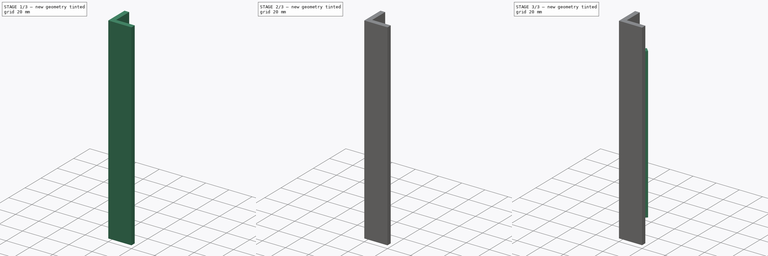
[diagram: build sequence overview — one tinted view per stage of 3, left to right]
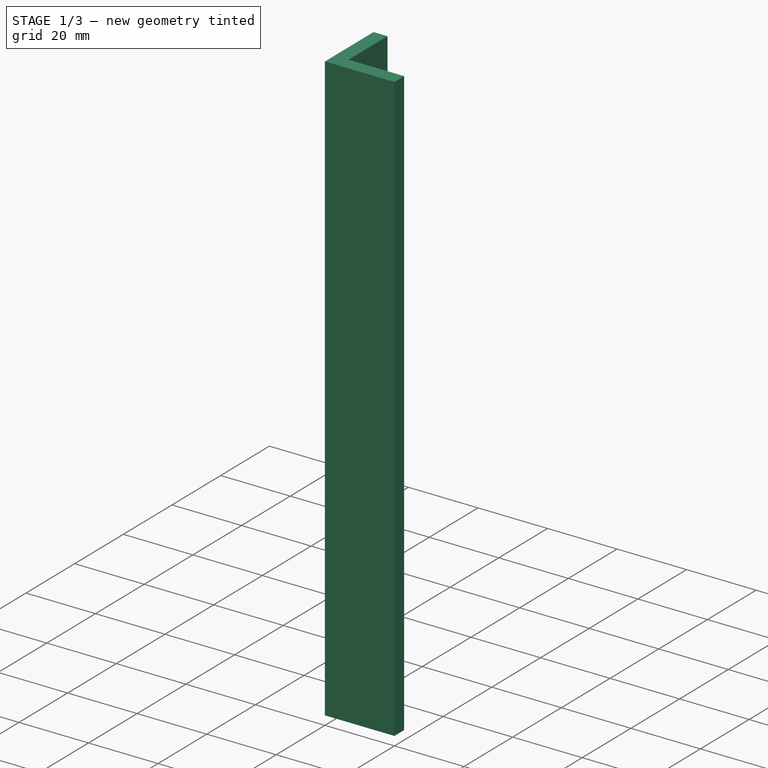
[diagram: stage 1 of 3 — iso view after this stage's code; geometry added in this stage tinted green]
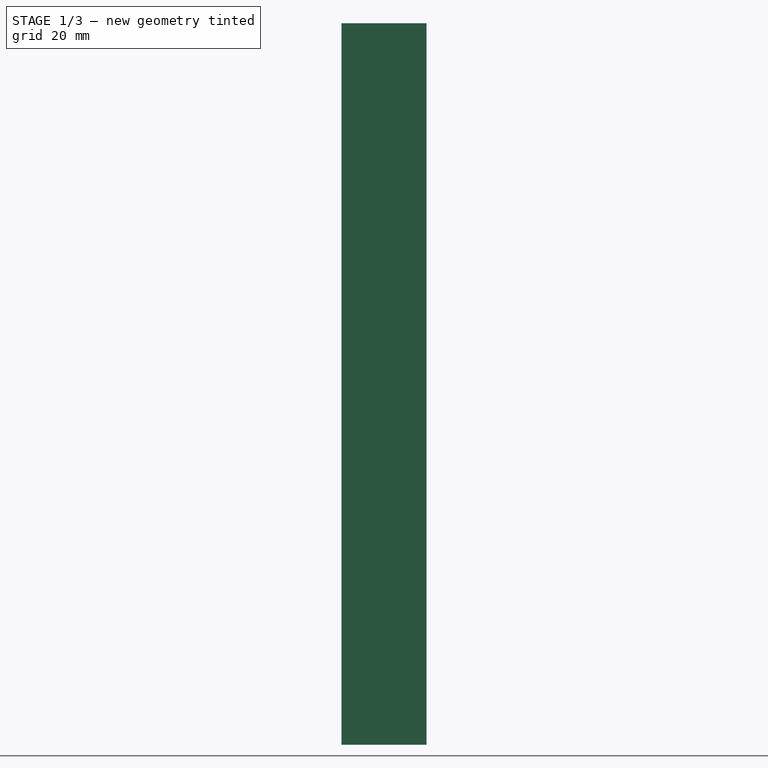
[diagram: stage 1 of 3 — front view after this stage's code; geometry added in this stage tinted green]
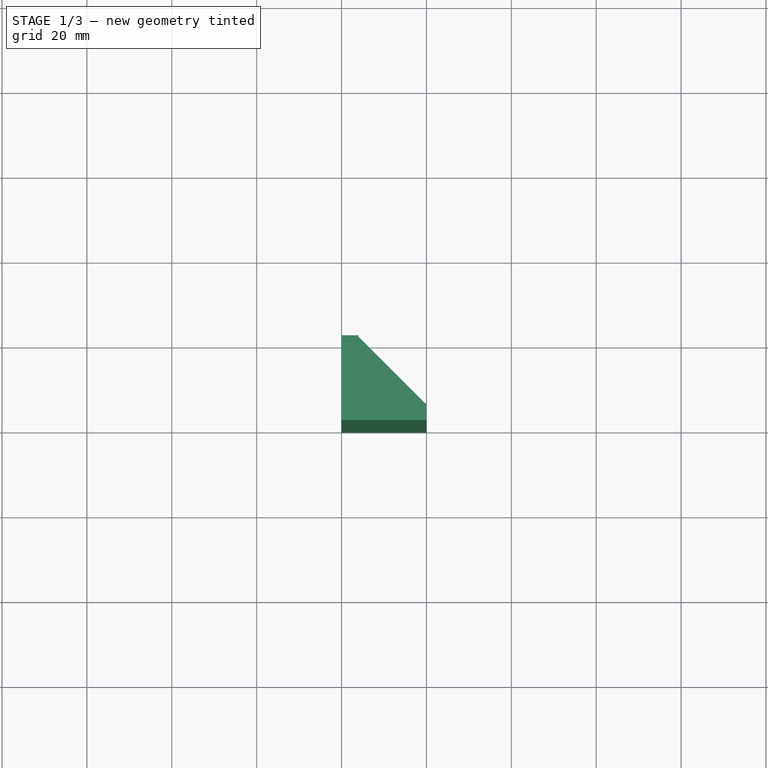
[diagram: stage 1 of 3 — top view after this stage's code; geometry added in this stage tinted green]
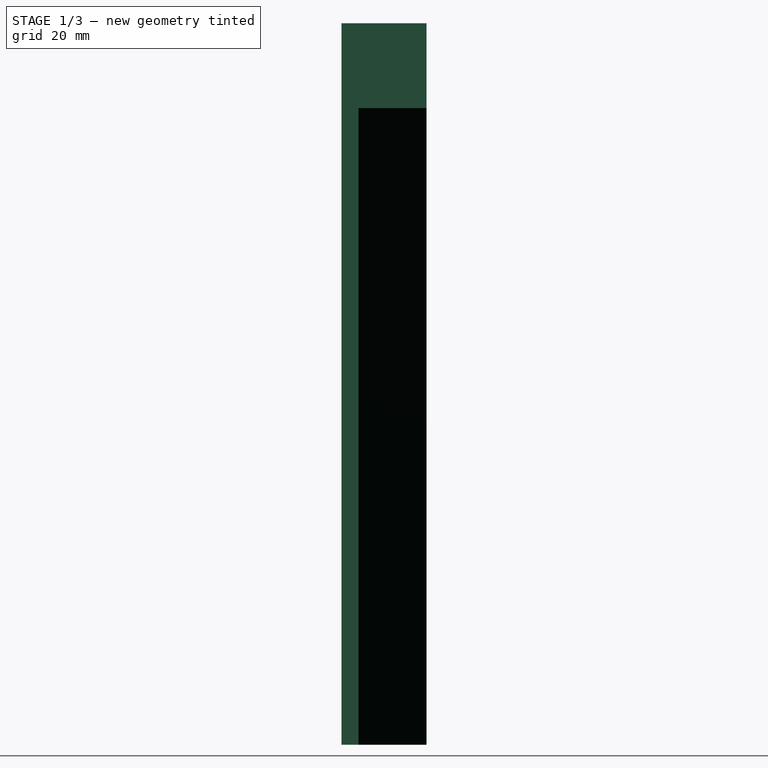
[diagram: stage 1 of 3 — right view after this stage's code; geometry added in this stage tinted green]
FCSTD DOCUMENT  (FreeCAD 0.18R16146 (Git))
Label: led_stripe_holder_180mm
License: All rights reserved
LicenseURL: http://en.wikipedia.org/wiki/All_rights_reserved
objects: Sketcher::SketchObject×6, PartDesign::Pocket×4, PartDesign::Pad×2, PartDesign::Body×1
note: 19 computed .brp shape members not serialized (recipe doc carries the construction recipe); baked Part::Feature solids carry a one-line shape summary decoded from their .brp

FEATURE [Sketcher::SketchObject] Sketch
  MapMode = 5
  Support = -> [XY_Plane]
  sketch-geometry (5):
    g0: LineSegment StartX=0 StartY=20 StartZ=0 EndX=0 EndY=0 EndZ=0
    g1: LineSegment StartX=0 StartY=0 StartZ=0 EndX=20 EndY=0 EndZ=0
    g2: LineSegment StartX=20 StartY=0 StartZ=0 EndX=20 EndY=4 EndZ=0
    g3: LineSegment StartX=20 StartY=4 StartZ=0 EndX=4 EndY=20 EndZ=0
    g4: LineSegment StartX=4 StartY=20 StartZ=0 EndX=0 EndY=20 EndZ=0
  constraints (14):
    c: Vertical(g0)
    c: Coincident(g0,g1)
    c: Horizontal(g1)
    c: Coincident(g1,g2)
    c: Vertical(g2)
    c: Coincident(g2,g3)
    c: Coincident(g3,g4)
    c: Coincident(g4,g0)
    c: Horizontal(g4)
    c: Equal(g0,g1)
    c: DistanceY(g0,g0) = 20
    c: Equal(g4,g2)
    c: DistanceX(g4,g4) = 4
    c: Coincident(g0,g-1)
FEATURE [PartDesign::Pad] Pad
  Length = 170
  Length2 = 100
  Profile = -> Sketch
  Type = 0
FEATURE [Sketcher::SketchObject] Sketch001
  ExternalGeometry = -> [Pad]
  MapMode = 5
  Placement = pos=(0,0,170) rot=(0,0,1;0rad)
  Support = -> [Pad]
  sketch-geometry (4):
    g0: LineSegment StartX=4 StartY=20 StartZ=0 EndX=20 EndY=20 EndZ=0
    g1: LineSegment StartX=20 StartY=20 StartZ=0 EndX=20 EndY=4 EndZ=0
    g2: LineSegment StartX=20 StartY=4 StartZ=0 EndX=4 EndY=4 EndZ=0
    g3: LineSegment StartX=4 StartY=4 StartZ=0 EndX=4 EndY=20 EndZ=0
  constraints (10):
    c: Coincident(g0,g1)
    c: Coincident(g1,g2)
    c: Coincident(g2,g3)
    c: Coincident(g3,g0)
    c: Horizontal(g0)
    c: Horizontal(g2)
    c: Vertical(g1)
    c: Vertical(g3)
    c: Coincident(g0,g-3)
    c: Coincident(g1,g-4)
FEATURE [PartDesign::Pocket] Pocket
  BaseFeature = -> Pad
  Length = 20
  Length2 = 100
  Profile = -> Sketch001
  Type = 0
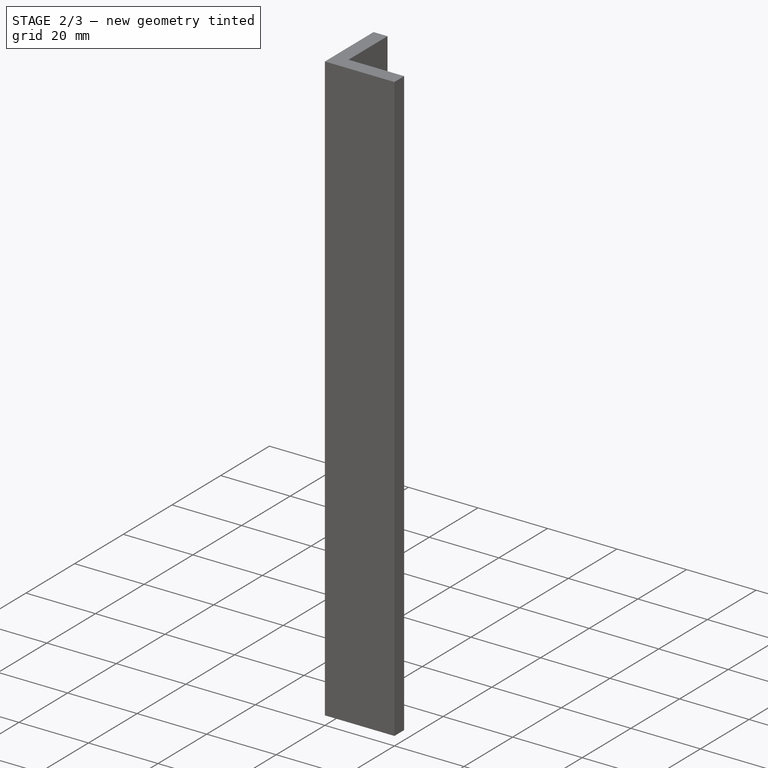
[diagram: stage 2 of 3 — iso view after this stage's code; geometry added in this stage tinted green]
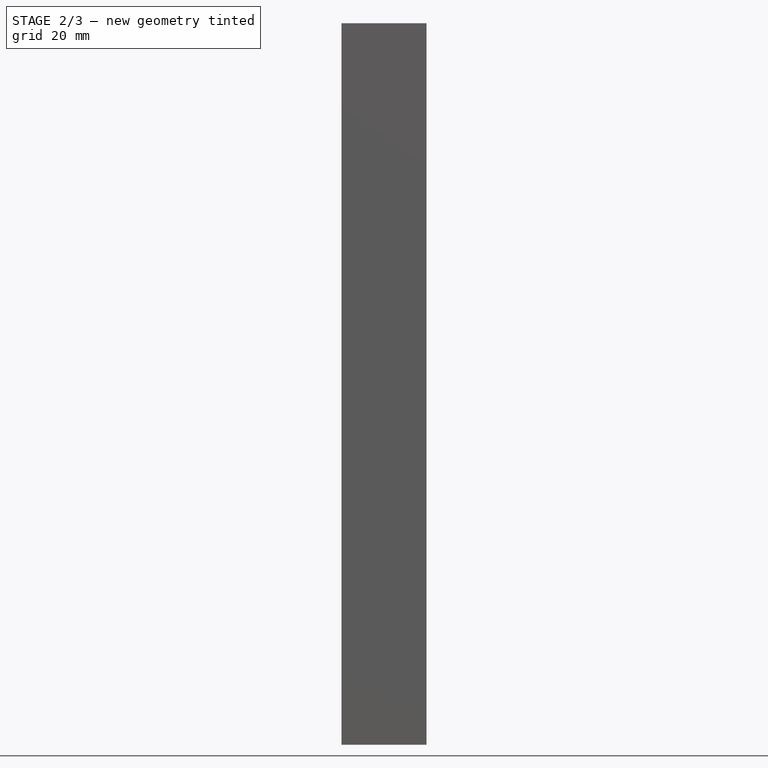
[diagram: stage 2 of 3 — front view after this stage's code; geometry added in this stage tinted green]
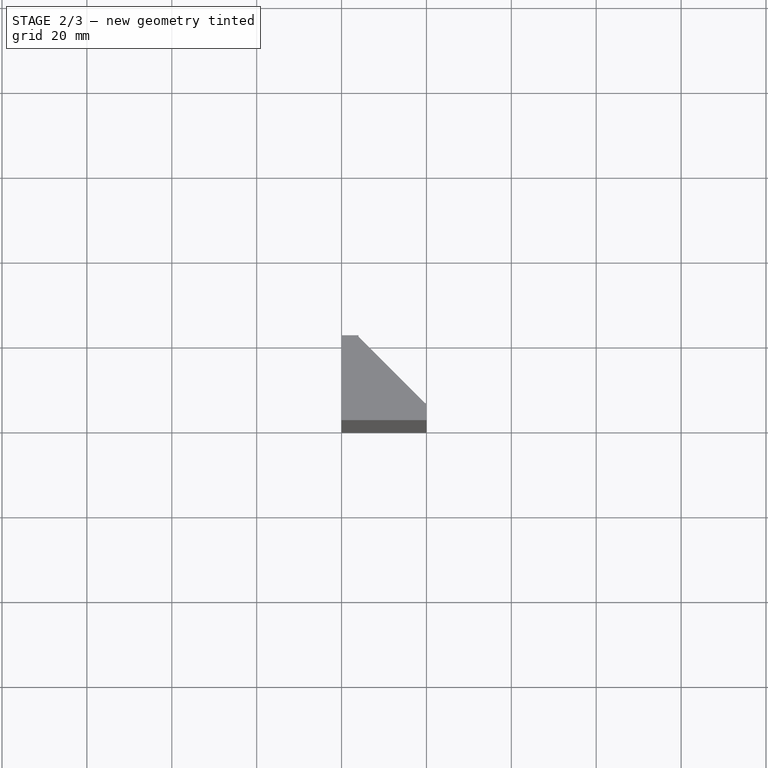
[diagram: stage 2 of 3 — top view after this stage's code; geometry added in this stage tinted green]
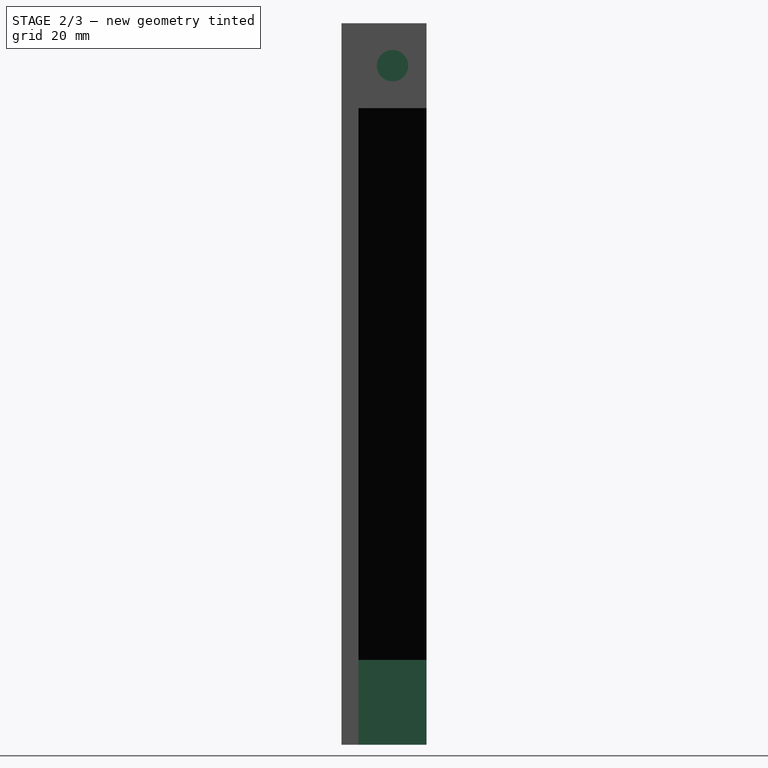
[diagram: stage 2 of 3 — right view after this stage's code; geometry added in this stage tinted green]
FEATURE [Sketcher::SketchObject] Sketch004
  ExternalGeometry = -> [Pocket]
  MapMode = 5
  Placement = pos=(0,0,0) rot=(1,0,0;3.14159rad)
  sketch-geometry (3):
    g0: LineSegment StartX=4 StartY=-4 StartZ=0 EndX=4 EndY=-20 EndZ=0
    g1: LineSegment StartX=4 StartY=-20 StartZ=0 EndX=20 EndY=-4 EndZ=0
    g2: LineSegment StartX=20 StartY=-4 StartZ=0 EndX=4 EndY=-4 EndZ=0
  constraints (6):
    c: Coincident(g0,g1)
    c: Coincident(g1,g2)
    c: Coincident(g2,g0)
    c: Coincident(g0,g-4)
    c: Coincident(g0,g-4)
    c: Coincident(g1,g-3)
FEATURE [PartDesign::Pocket] Pocket001
  BaseFeature = -> Pocket
  Length = 20
  Length2 = 100
  Profile = -> Sketch004
  Type = 0
FEATURE [Sketcher::SketchObject] Sketch005
  ExternalGeometry = -> [Pocket001]
  MapMode = 5
  Placement = pos=(4,0,0) rot=(0.57735,0.57735,0.57735;2.0944rad)
  sketch-geometry (8):
    g0: LineSegment [constr] StartX=20 StartY=20 StartZ=0 EndX=4 EndY=0 EndZ=0
    g1: LineSegment [constr] StartX=4 StartY=20 StartZ=0 EndX=20 EndY=0 EndZ=0
    g2: LineSegment [constr] StartX=4 StartY=170 StartZ=0 EndX=20 EndY=150 EndZ=0
    g3: LineSegment [constr] StartX=20 StartY=170 StartZ=0 EndX=4 EndY=150 EndZ=0
    g4: Circle CenterX=12 CenterY=160 CenterZ=0 NormalX=0 NormalY=0 NormalZ=1 AngleXU=0 Radius=3.7
    g5: Circle CenterX=12 CenterY=10 CenterZ=0 NormalX=0 NormalY=0 NormalZ=1 AngleXU=0 Radius=3.7
    g6: GeomPoint X=12 Y=160 Z=0
    g7: GeomPoint X=12 Y=10 Z=0
  constraints (16):
    c: Radius(g4) = 3.7
    c: Equal(g4,g5)
    c: PointOnObject(g6,g2)
    c: PointOnObject(g6,g3)
    c: Coincident(g4,g6)
    c: PointOnObject(g7,g0)
    c: PointOnObject(g7,g1)
    c: Coincident(g7,g5)
    c: Coincident(g-5,g3)
    c: Coincident(g2,g-5)
    c: Coincident(g3,g-4)
    c: Coincident(g-4,g2)
    c: Coincident(g1,g-6)
    c: Coincident(g0,g-7)
    c: Coincident(g0,g-8)
    c: Coincident(g1,g-8)
FEATURE [PartDesign::Pocket] Pocket002
  BaseFeature = -> Pocket001
  Length = 2
  Length2 = 100
  Profile = -> Sketch005
  Type = 0
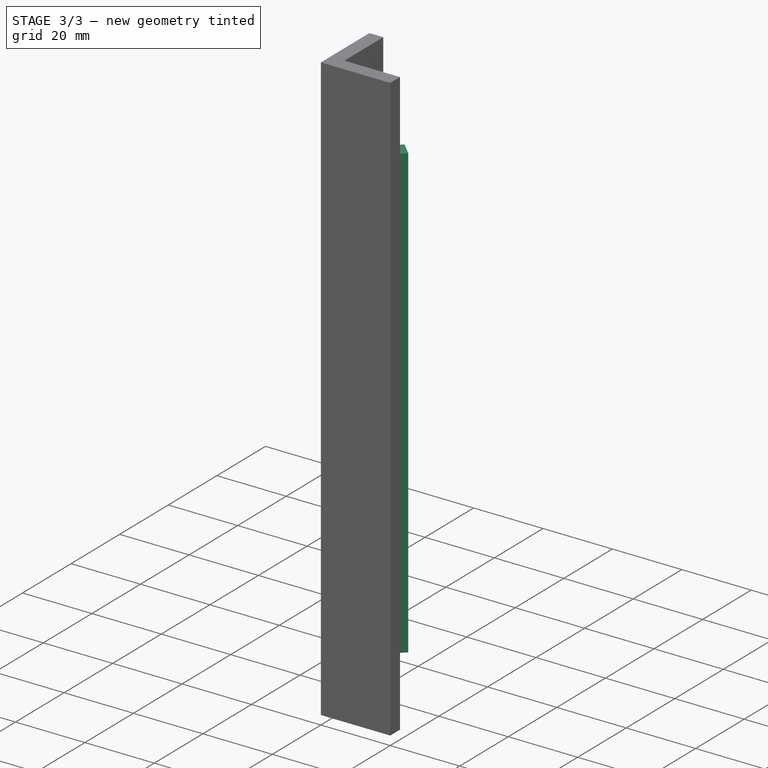
[diagram: stage 3 of 3 — iso view after this stage's code; geometry added in this stage tinted green]
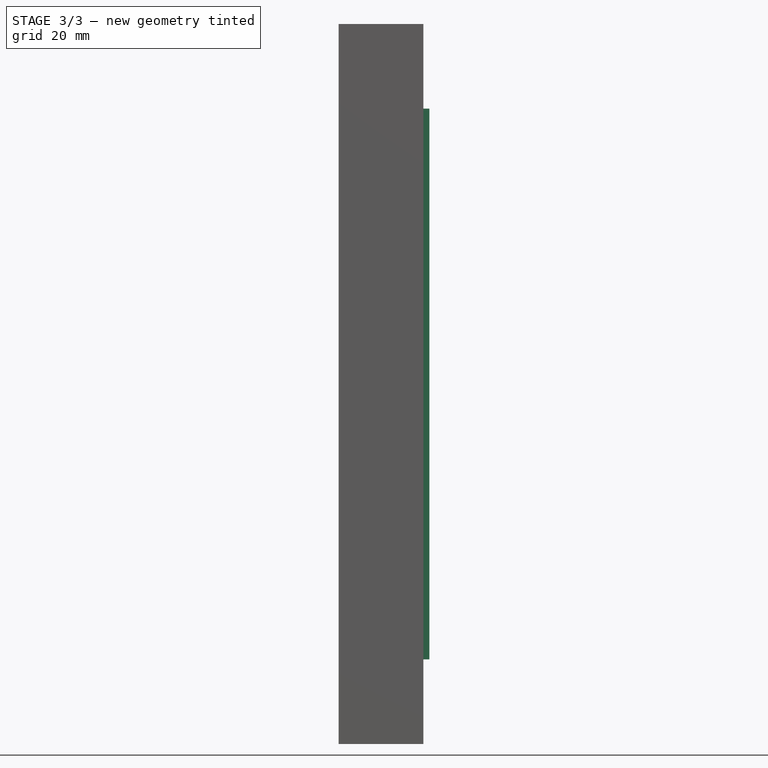
[diagram: stage 3 of 3 — front view after this stage's code; geometry added in this stage tinted green]
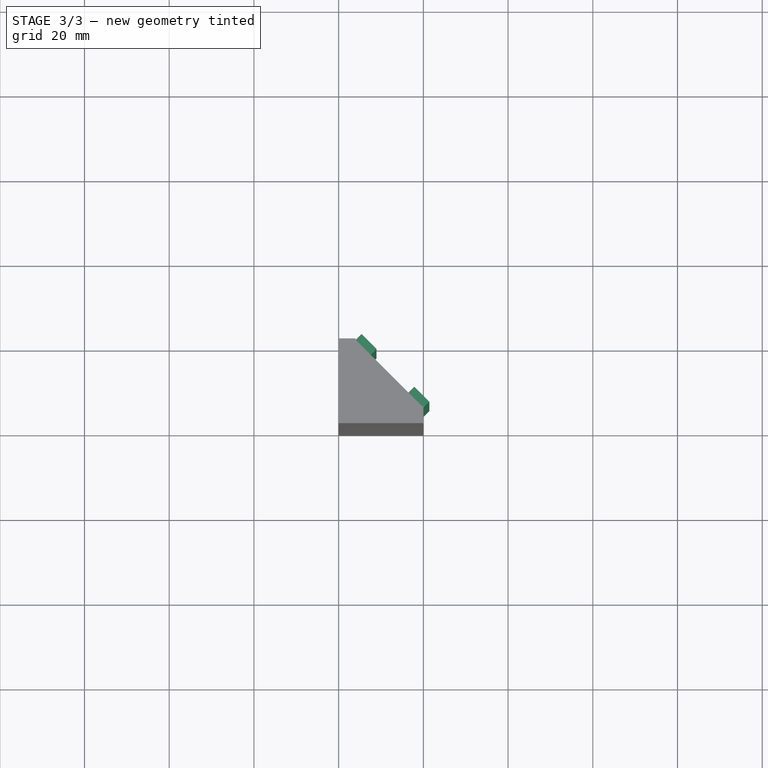
[diagram: stage 3 of 3 — top view after this stage's code; geometry added in this stage tinted green]
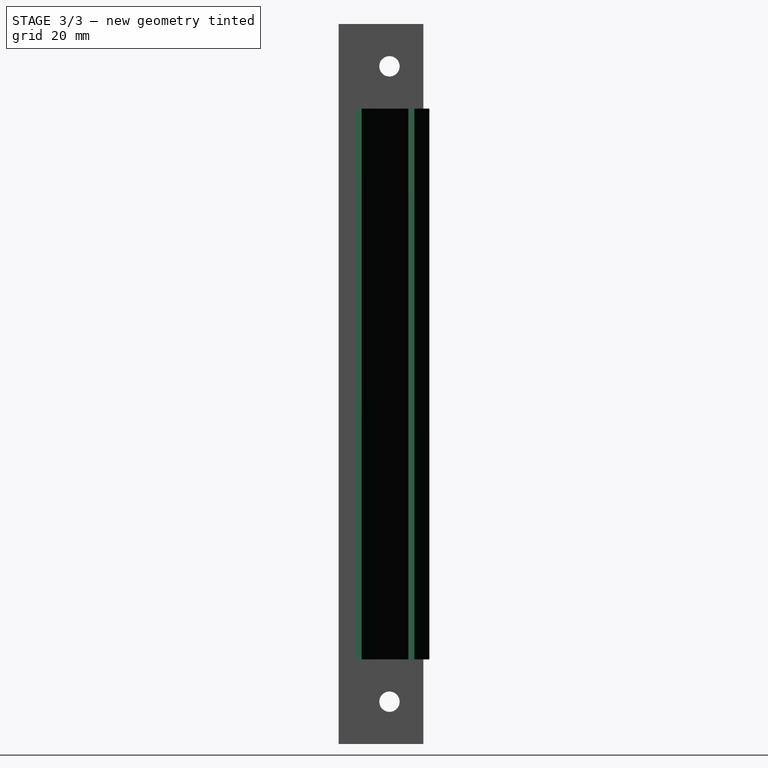
[diagram: stage 3 of 3 — right view after this stage's code; geometry added in this stage tinted green]
FEATURE [Sketcher::SketchObject] Sketch006
  ExternalGeometry = -> [Pocket002]
  MapMode = 5
  Placement = pos=(4,0,0) rot=(0.57735,0.57735,0.57735;2.0944rad)
  sketch-geometry (2):
    g0: Circle CenterX=12 CenterY=10 CenterZ=0 NormalX=0 NormalY=0 NormalZ=1 AngleXU=0 Radius=2.4
    g1: Circle CenterX=12 CenterY=160 CenterZ=0 NormalX=0 NormalY=0 NormalZ=1 AngleXU=0 Radius=2.4
  constraints (4):
    c: Radius(g0) = 2.4
    c: Radius(g1) = 2.4
    c: Coincident(g1,g-3)
    c: Coincident(g0,g-4)
FEATURE [Sketcher::SketchObject] Sketch007
  ExternalGeometry = -> [Pocket002]
  MapMode = 5
  Placement = pos=(12,12,0) rot=(0.281085,0.678598,0.678598;2.59356rad)
  sketch-geometry (8):
    g0: LineSegment StartX=-11.3137 StartY=150 StartZ=0 EndX=-6.31371 EndY=150 EndZ=0
    g1: LineSegment StartX=-6.31371 StartY=150 StartZ=0 EndX=-6.31371 EndY=20 EndZ=0
    g2: LineSegment StartX=-6.31371 StartY=20 StartZ=0 EndX=-11.3137 EndY=20 EndZ=0
    g3: LineSegment StartX=-11.3137 StartY=20 StartZ=0 EndX=-11.3137 EndY=150 EndZ=0
    g4: LineSegment StartX=6.31371 StartY=150 StartZ=0 EndX=11.3137 EndY=150 EndZ=0
    g5: LineSegment StartX=11.3137 StartY=150 StartZ=0 EndX=11.3137 EndY=20 EndZ=0
    g6: LineSegment StartX=11.3137 StartY=20 StartZ=0 EndX=6.31371 EndY=20 EndZ=0
    g7: LineSegment StartX=6.31371 StartY=20 StartZ=0 EndX=6.31371 EndY=150 EndZ=0
  constraints (20):
    c: Coincident(g0,g1)
    c: Coincident(g1,g2)
    c: Coincident(g2,g3)
    c: Coincident(g3,g0)
    c: Horizontal(g0)
    c: Horizontal(g2)
    c: Vertical(g1)
    c: Coincident(g4,g5)
    c: Coincident(g5,g6)
    c: Coincident(g6,g7)
    c: Coincident(g7,g4)
    c: Horizontal(g4)
    c: Horizontal(g6)
    c: Vertical(g7)
    c: Distance(g0) = 5
    c: Distance(g4) = 5
    c: Coincident(g0,g-4)
    c: Coincident(g2,g-4)
    c: Coincident(g5,g-5)
    c: Coincident(g4,g-5)
FEATURE [PartDesign::Pocket] Pocket003
  BaseFeature = -> Pocket002
  Length = 4
  Length2 = 100
  Profile = -> Sketch006
  Type = 0
FEATURE [PartDesign::Pad] Pad001
  BaseFeature = -> Pocket003
  Length = 2
  Length2 = 100
  Profile = -> Sketch007
  Type = 0
FEATURE [PartDesign::Body] Body
  Group = -> [Sketch,Pad,Sketch001,Sketch004,Sketch005,Sketch006,Sketch007,Pocket,Pocket001,Pocket002,Pocket003,Pad001]
  Origin = -> Origin
  Tip = -> Pad001
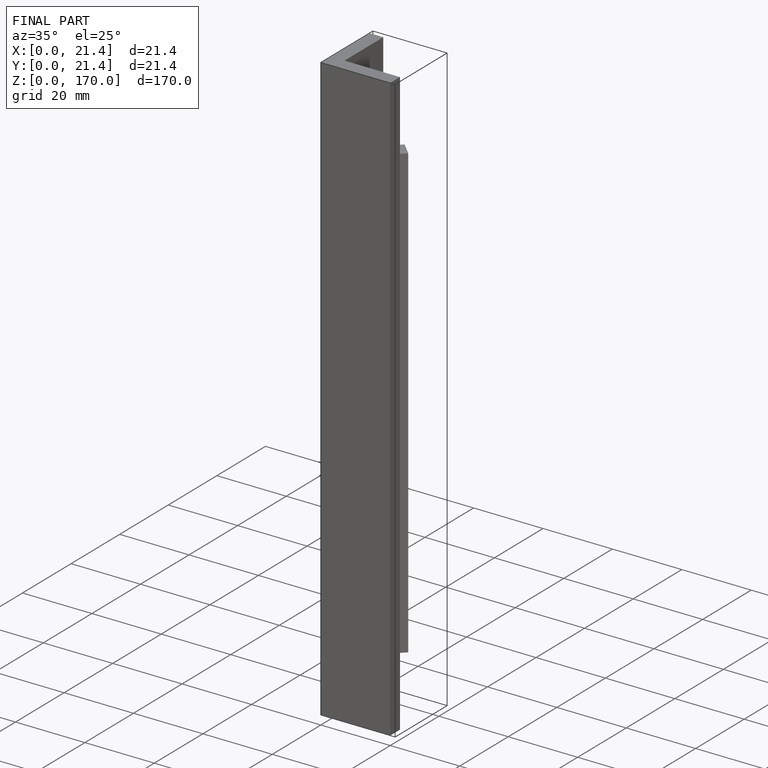
[diagram: finished part — iso view with bounding-box wireframe]
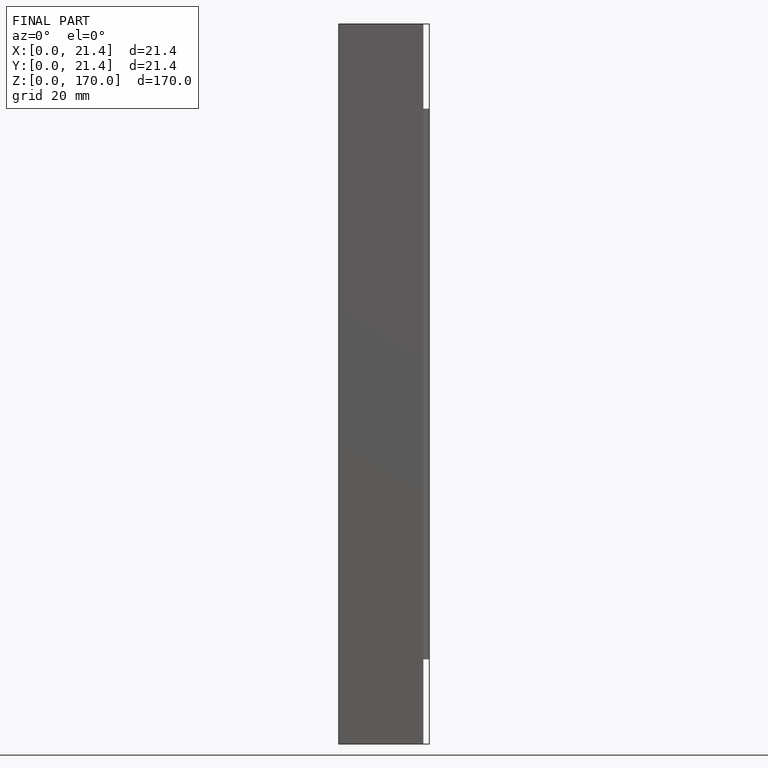
[diagram: finished part — front view with bounding-box wireframe]
